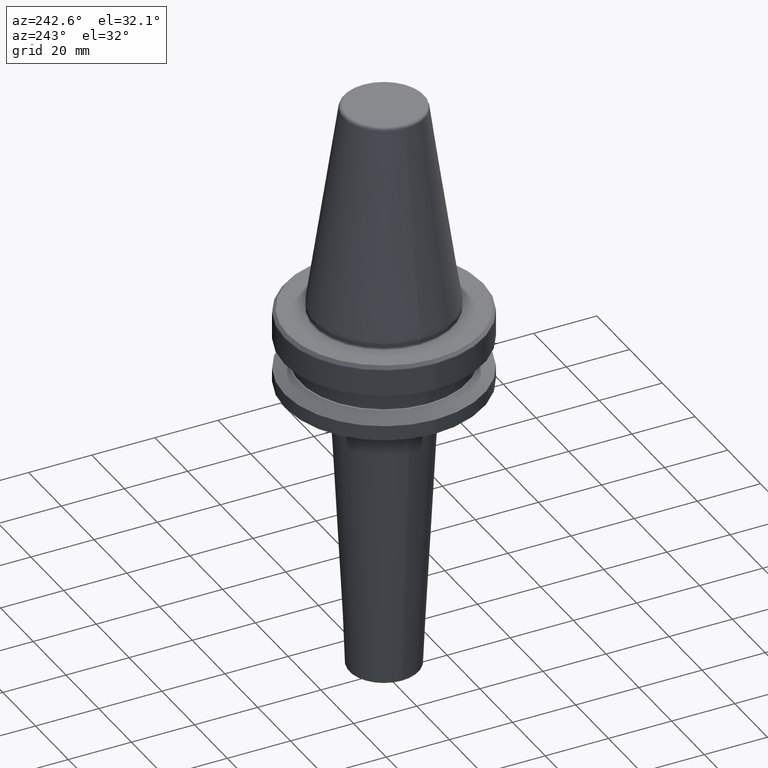
[diagram: clean part render]
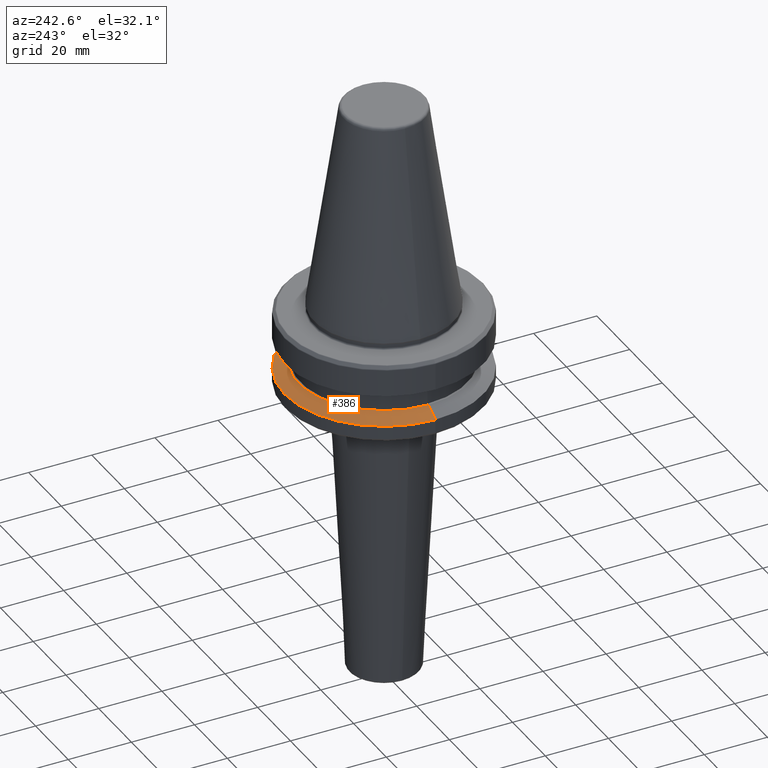
[diagram: same view with one face highlighted and labeled with its STEP entity id]
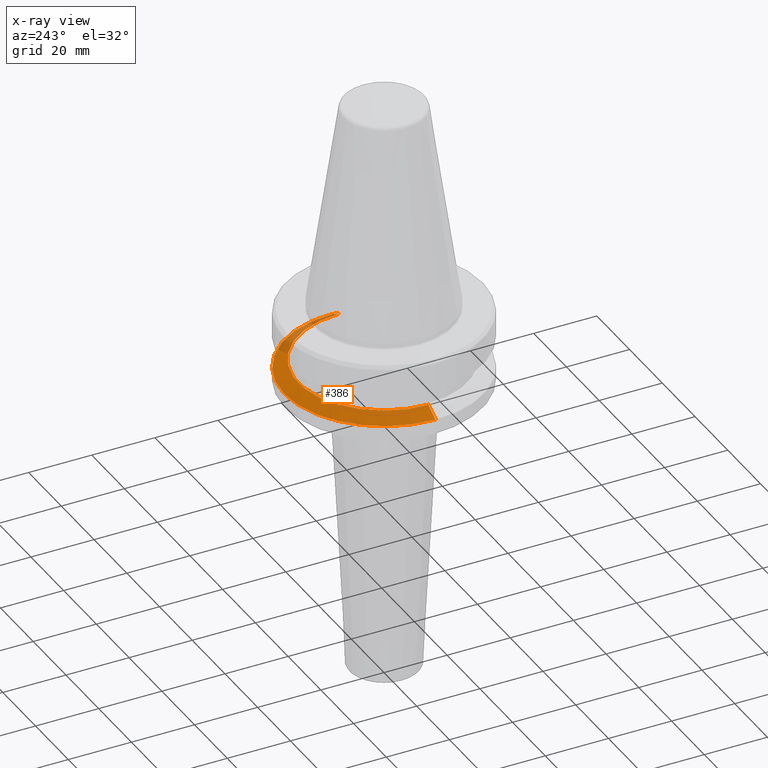
[diagram: x-ray of the same camera — body ghosted, the highlighted face saturated]
A machine part, auxiliary view. The second image highlights one B-rep face of the part: STEP entity #386.
The next image is the same camera in x-ray: the body ghosted, the highlighted face saturated — about 10% of this face is hidden behind the body in this view.
In plain terms, the highlighted conical surface has half-angle 60 deg.
Its self-contained STEP definition (entity closure, byte-faithful):
#29 = VECTOR ( 'NONE', #1094, 1000.000000000000000 ) ;
#41 = LINE ( 'NONE', #434, #29 ) ;
#69 = DIRECTION ( 'NONE',  ( -1.000000000000000000, 0.0000000000000000000, 0.0000000000000000000 ) ) ;
#101 = CARTESIAN_POINT ( 'NONE',  ( -27.17012701892217700, 0.0000000000000000000, -19.09999999999999800 ) ) ;
#170 = CARTESIAN_POINT ( 'NONE',  ( 0.0000000000000000000, 0.0000000000000000000, -21.59985333118215700 ) ) ;
#175 = CARTESIAN_POINT ( 'NONE',  ( -27.17012701892217700, 0.0000000000000000000, -19.09999999999999800 ) ) ;
#196 = CONICAL_SURFACE ( 'NONE', #1186, 27.17012701892217700, 1.047197551196600500 ) ;
#222 = FACE_OUTER_BOUND ( 'NONE', #1081, .T. ) ;
#234 = CIRCLE ( 'NONE', #830, 31.50000000000000700 ) ;
#246 = CARTESIAN_POINT ( 'NONE',  ( -31.50000000000000700, 0.0000000000000000000, -21.59985333118215700 ) ) ;
#299 = EDGE_CURVE ( 'NONE', #696, #972, #234, .T. ) ;
#304 = CARTESIAN_POINT ( 'NONE',  ( 27.17012701892217700, 3.592509162964584900E-015, -19.09999999999999800 ) ) ;
#345 = DIRECTION ( 'NONE',  ( -0.0000000000000000000, -0.0000000000000000000, -1.000000000000000000 ) ) ;
#386 = ADVANCED_FACE ( 'NONE', ( #222 ), #196, .T. ) ;
#388 = VECTOR ( 'NONE', #1153, 1000.000000000000000 ) ;
#434 = CARTESIAN_POINT ( 'NONE',  ( 27.17012701892217700, 3.327380908615005900E-015, -19.09999999999999800 ) ) ;
#466 = ORIENTED_EDGE ( 'NONE', *, *, #772, .T. ) ;
#529 = CARTESIAN_POINT ( 'NONE',  ( 31.50000000000000700, 3.857637417314163500E-015, -21.59985333118215700 ) ) ;
#553 = DIRECTION ( 'NONE',  ( -1.000000000000000000, 0.0000000000000000000, 0.0000000000000000000 ) ) ;
#569 = AXIS2_PLACEMENT_3D ( 'NONE', #1196, #345, #826 ) ;
#582 = VERTEX_POINT ( 'NONE', #304 ) ;
#587 = DIRECTION ( 'NONE',  ( -0.0000000000000000000, -0.0000000000000000000, -1.000000000000000000 ) ) ;
#614 = LINE ( 'NONE', #101, #388 ) ;
#696 = VERTEX_POINT ( 'NONE', #246 ) ;
#772 = EDGE_CURVE ( 'NONE', #582, #972, #41, .T. ) ;
#778 = ORIENTED_EDGE ( 'NONE', *, *, #886, .T. ) ;
#809 = ORIENTED_EDGE ( 'NONE', *, *, #1071, .F. ) ;
#826 = DIRECTION ( 'NONE',  ( -1.000000000000000000, 0.0000000000000000000, 0.0000000000000000000 ) ) ;
#830 = AXIS2_PLACEMENT_3D ( 'NONE', #170, #866, #553 ) ;
#866 = DIRECTION ( 'NONE',  ( -0.0000000000000000000, -0.0000000000000000000, -1.000000000000000000 ) ) ;
#886 = EDGE_CURVE ( 'NONE', #1035, #582, #1016, .T. ) ;
#972 = VERTEX_POINT ( 'NONE', #529 ) ;
#1016 = CIRCLE ( 'NONE', #569, 27.17012701892217700 ) ;
#1035 = VERTEX_POINT ( 'NONE', #175 ) ;
#1071 = EDGE_CURVE ( 'NONE', #1035, #696, #614, .T. ) ;
#1080 = ORIENTED_EDGE ( 'NONE', *, *, #299, .F. ) ;
#1081 = EDGE_LOOP ( 'NONE', ( #778, #466, #1080, #809 ) ) ;
#1094 = DIRECTION ( 'NONE',  ( 0.8660254037844400400, 1.060575238724908600E-016, -0.4999999999999976100 ) ) ;
#1107 = CARTESIAN_POINT ( 'NONE',  ( 0.0000000000000000000, 0.0000000000000000000, -19.09999999999999800 ) ) ;
#1153 = DIRECTION ( 'NONE',  ( -0.8660254037844400400, 0.0000000000000000000, -0.4999999999999976100 ) ) ;
#1186 = AXIS2_PLACEMENT_3D ( 'NONE', #1107, #587, #69 ) ;
#1196 = CARTESIAN_POINT ( 'NONE',  ( 0.0000000000000000000, 0.0000000000000000000, -19.09999999999999800 ) ) ;